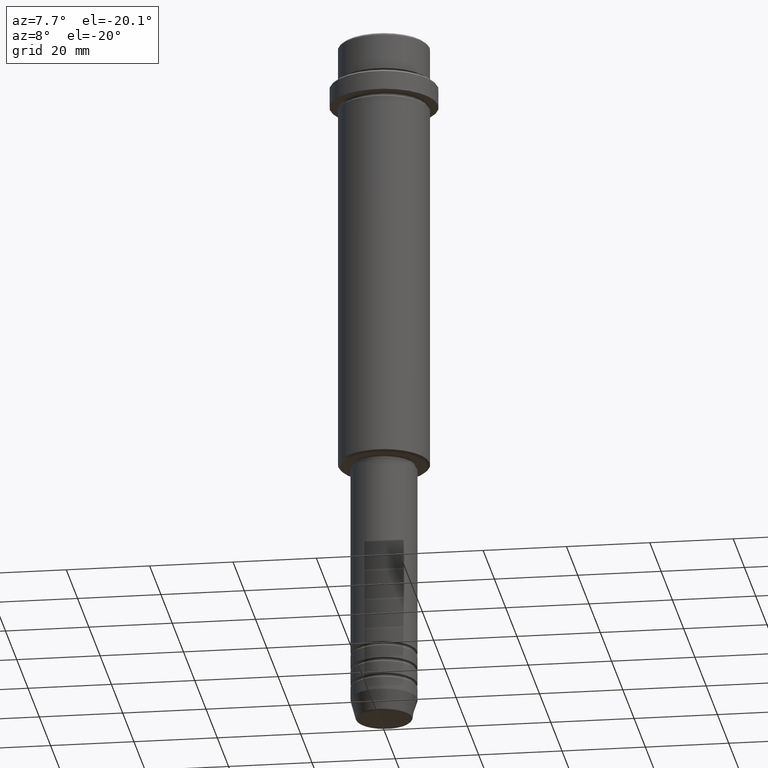
[diagram: clean part render]
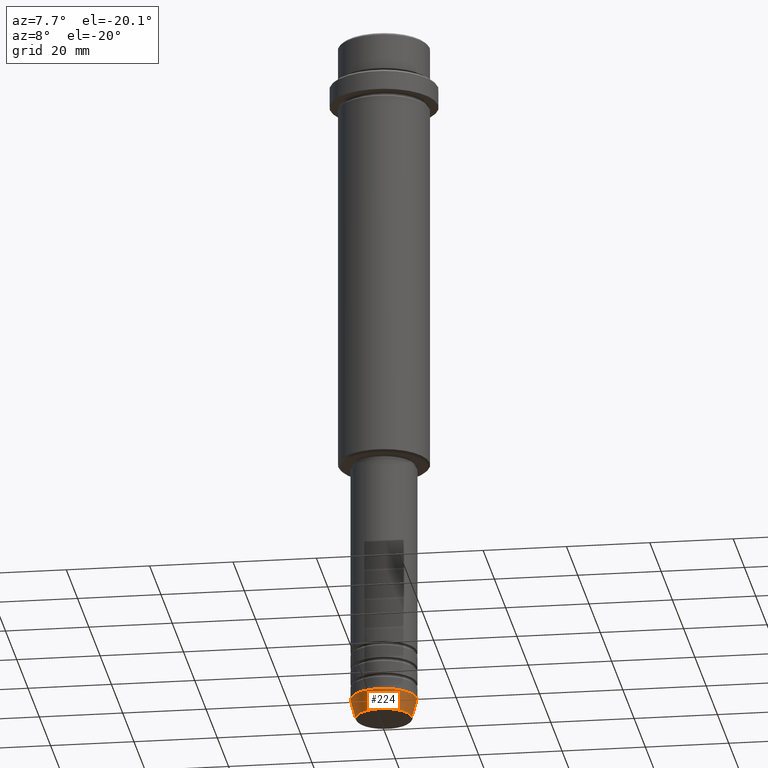
[diagram: same view with one face highlighted and labeled with its STEP entity id]
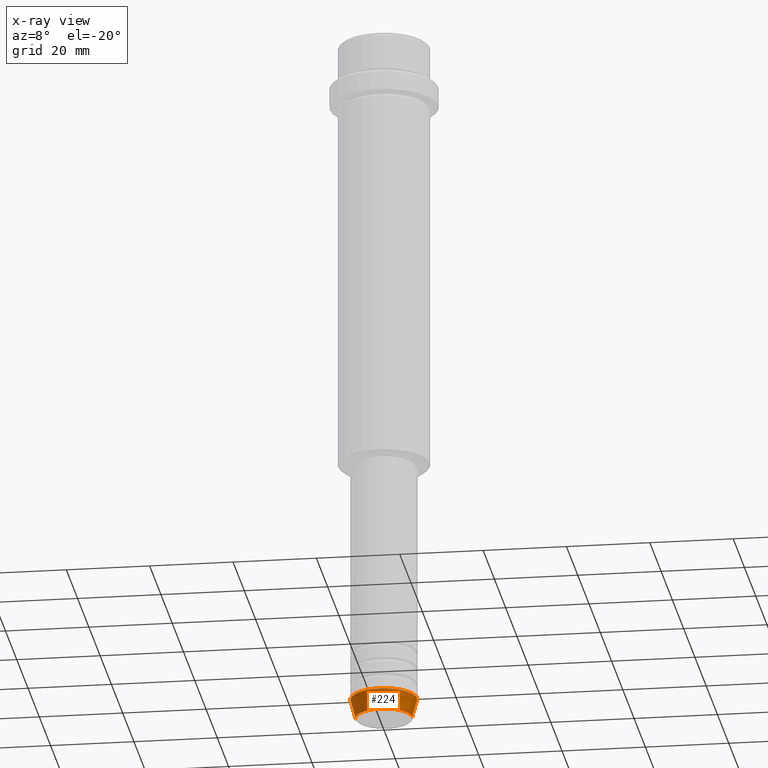
[diagram: x-ray of the same camera — body ghosted, the highlighted face saturated]
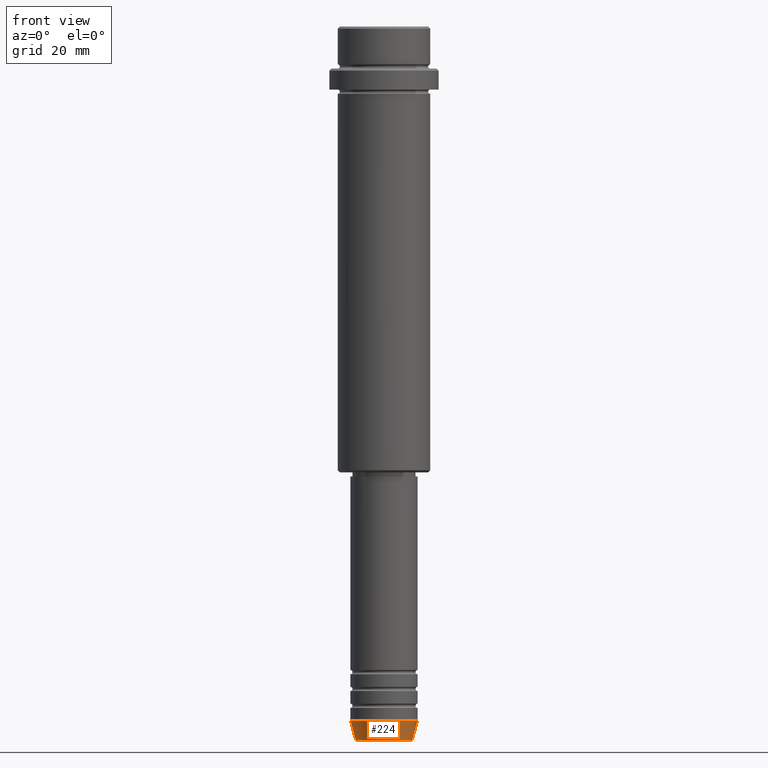
[diagram: same view with one face highlighted and labeled with its STEP entity id]
A machine part, auxiliary view. The second image highlights one B-rep face of the part: STEP entity #224.
The next image is the same camera in x-ray: the body ghosted, the highlighted face saturated — about 0% of this face is hidden behind the body in this view.
A second angle (front view) of the same face is appended — the face is thin or edge-on in the first view.
In plain terms, the highlighted conical surface has half-angle 15 deg.
Its self-contained STEP definition (entity closure, byte-faithful):
#1 = AXIS2_PLACEMENT_3D ( 'NONE', #765, #540, #441 ) ;
#48 = DIRECTION ( 'NONE',  ( -0.000000000000000000, -0.000000000000000000, 1.000000000000000000 ) ) ;
#135 = EDGE_CURVE ( 'NONE', #217, #1296, #1184, .T. ) ;
#189 = CARTESIAN_POINT ( 'NONE',  ( -8.000000000000000000, 9.797174393178825657E-16, -165.0000000000000000 ) ) ;
#217 = VERTEX_POINT ( 'NONE', #1106 ) ;
#224 = ADVANCED_FACE ( 'NONE', ( #452 ), #264, .T. ) ;
#259 = DIRECTION ( 'NONE',  ( 1.000000000000000000, 0.000000000000000000, 0.000000000000000000 ) ) ;
#264 = CONICAL_SURFACE ( 'NONE', #1413, 8.000000000000000000, 0.2617993877991500740 ) ;
#343 = CIRCLE ( 'NONE', #1, 8.000000000000000000 ) ;
#414 = DIRECTION ( 'NONE',  ( 0.2588190451025213501, 0.000000000000000000, 0.9659258262890680902 ) ) ;
#440 = ORIENTED_EDGE ( 'NONE', *, *, #135, .F. ) ;
#441 = DIRECTION ( 'NONE',  ( 1.000000000000000000, 0.000000000000000000, 0.000000000000000000 ) ) ;
#452 = FACE_OUTER_BOUND ( 'NONE', #1221, .T. ) ;
#467 = CARTESIAN_POINT ( 'NONE',  ( -8.000000000000000000, 9.797174393178825657E-16, -165.0000000000000000 ) ) ;
#480 = EDGE_CURVE ( 'NONE', #217, #1319, #1010, .T. ) ;
#522 = CARTESIAN_POINT ( 'NONE',  ( 8.000000000000000000, 0.000000000000000000, -165.0000000000000000 ) ) ;
#529 = CARTESIAN_POINT ( 'NONE',  ( 0.000000000000000000, 0.000000000000000000, -165.0000000000000000 ) ) ;
#540 = DIRECTION ( 'NONE',  ( -0.000000000000000000, -0.000000000000000000, 1.000000000000000000 ) ) ;
#556 = DIRECTION ( 'NONE',  ( -0.000000000000000000, -0.000000000000000000, 1.000000000000000000 ) ) ;
#608 = VECTOR ( 'NONE', #861, 1000.000000000000000 ) ;
#650 = EDGE_CURVE ( 'NONE', #1296, #906, #343, .T. ) ;
#765 = CARTESIAN_POINT ( 'NONE',  ( 0.000000000000000000, 0.000000000000000000, -165.0000000000000000 ) ) ;
#812 = CARTESIAN_POINT ( 'NONE',  ( 6.759553456999433330, 0.000000000000000000, -169.6294095225512706 ) ) ;
#826 = VECTOR ( 'NONE', #414, 1000.000000000000000 ) ;
#856 = LINE ( 'NONE', #522, #826 ) ;
#861 = DIRECTION ( 'NONE',  ( -0.2588190451025213501, 3.169619151431772337E-17, 0.9659258262890680902 ) ) ;
#906 = VERTEX_POINT ( 'NONE', #1401 ) ;
#976 = ORIENTED_EDGE ( 'NONE', *, *, #650, .F. ) ;
#1010 = CIRCLE ( 'NONE', #1191, 6.759553456999433330 ) ;
#1026 = CARTESIAN_POINT ( 'NONE',  ( 0.000000000000000000, 0.000000000000000000, -169.6294095225512706 ) ) ;
#1057 = ORIENTED_EDGE ( 'NONE', *, *, #1386, .T. ) ;
#1104 = ORIENTED_EDGE ( 'NONE', *, *, #480, .T. ) ;
#1106 = CARTESIAN_POINT ( 'NONE',  ( -6.759553456999433330, 9.037619948979304241E-16, -169.6294095225512706 ) ) ;
#1184 = LINE ( 'NONE', #189, #608 ) ;
#1191 = AXIS2_PLACEMENT_3D ( 'NONE', #1026, #48, #259 ) ;
#1221 = EDGE_LOOP ( 'NONE', ( #440, #1104, #1057, #976 ) ) ;
#1296 = VERTEX_POINT ( 'NONE', #467 ) ;
#1319 = VERTEX_POINT ( 'NONE', #812 ) ;
#1386 = EDGE_CURVE ( 'NONE', #1319, #906, #856, .T. ) ;
#1401 = CARTESIAN_POINT ( 'NONE',  ( 8.000000000000000000, 0.000000000000000000, -165.0000000000000000 ) ) ;
#1411 = DIRECTION ( 'NONE',  ( 1.000000000000000000, 0.000000000000000000, 0.000000000000000000 ) ) ;
#1413 = AXIS2_PLACEMENT_3D ( 'NONE', #529, #556, #1411 ) ;